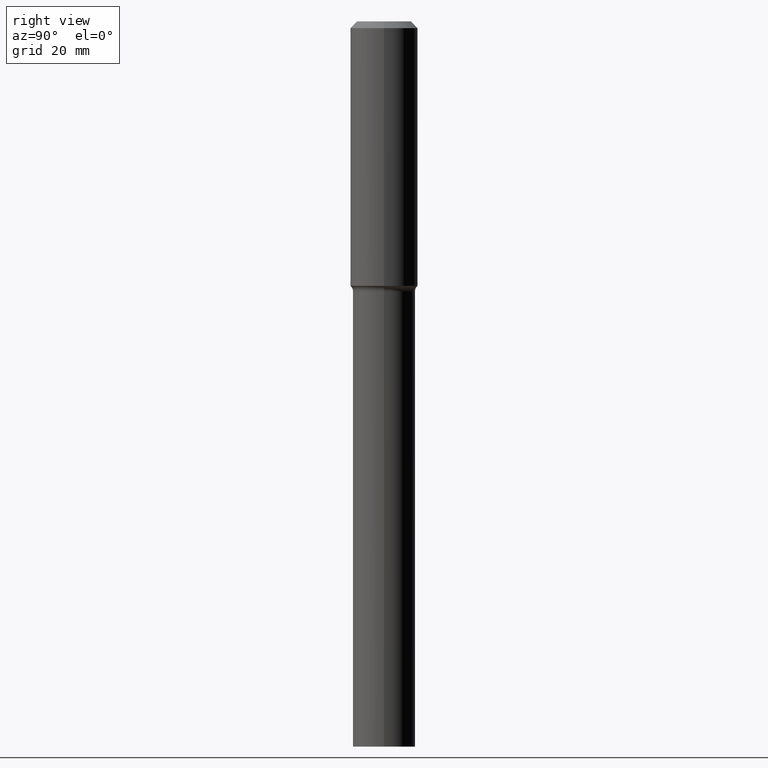
[diagram: clean part render]
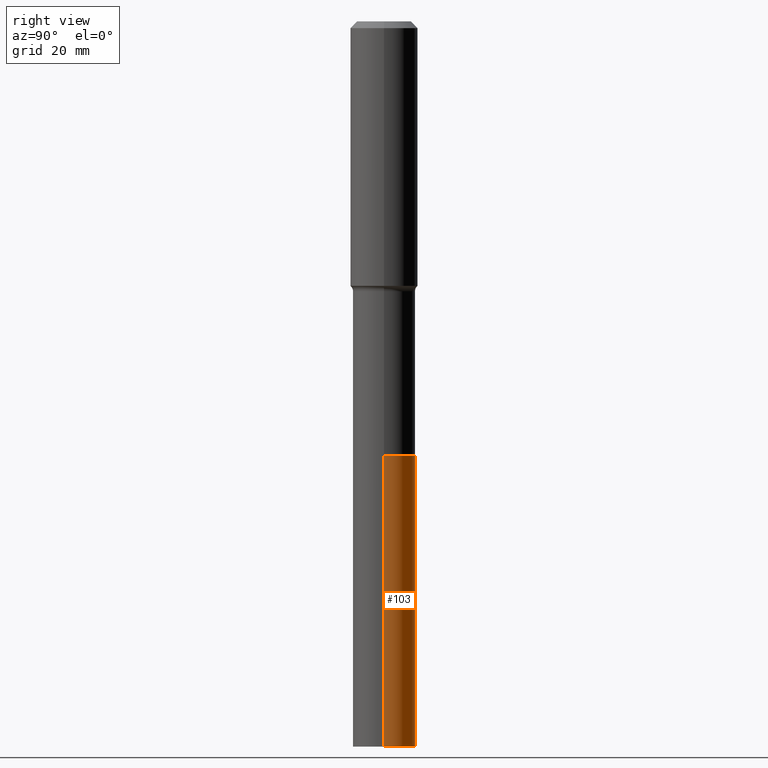
[diagram: same view with one face highlighted and labeled with its STEP entity id]
A machine part, right view. The second image highlights one B-rep face of the part: STEP entity #103.
In plain terms, the highlighted cylindrical surface (edge-blend (fillet) strip) has radius 9.2494 mm, axis along (-0, 0, 1).
Its self-contained STEP definition (entity closure, byte-faithful):
#5 = EDGE_CURVE ( 'NONE', #168, #232, #426, .T. ) ;
#27 = EDGE_LOOP ( 'NONE', ( #121, #134, #380, #378 ) ) ;
#49 = DIRECTION ( 'NONE',  ( -2.445468806185136877E-29, 3.491481338843145188E-15, 1.000000000000000000 ) ) ;
#85 = EDGE_CURVE ( 'NONE', #459, #210, #166, .T. ) ;
#103 = ADVANCED_FACE ( 'NONE', ( #271 ), #160, .T. ) ;
#110 = CARTESIAN_POINT ( 'NONE',  ( 0.3641499999999999737, -2.022929372912329659E-14, -5.065600000000001657 ) ) ;
#111 = VECTOR ( 'NONE', #277, 39.37007874015748143 ) ;
#121 = ORIENTED_EDGE ( 'NONE', *, *, #85, .T. ) ;
#134 = ORIENTED_EDGE ( 'NONE', *, *, #396, .T. ) ;
#153 = LINE ( 'NONE', #110, #111 ) ;
#160 = CYLINDRICAL_SURFACE ( 'NONE', #438, 0.3641499999999999737 ) ;
#166 = CIRCLE ( 'NONE', #464, 0.3641499999999999737 ) ;
#168 = VERTEX_POINT ( 'NONE', #356 ) ;
#191 = CARTESIAN_POINT ( 'NONE',  ( 2.069991525683471225E-28, -2.955399294077169677E-14, -8.464600000000000790 ) ) ;
#192 = DIRECTION ( 'NONE',  ( 1.000000000000000000, -6.982962677686263555E-15, 0.000000000000000000 ) ) ;
#210 = VERTEX_POINT ( 'NONE', #417 ) ;
#211 = AXIS2_PLACEMENT_3D ( 'NONE', #335, #428, #269 ) ;
#220 = VECTOR ( 'NONE', #49, 39.37007874015748143 ) ;
#232 = VERTEX_POINT ( 'NONE', #515 ) ;
#269 = DIRECTION ( 'NONE',  ( 1.000000000000000000, -6.982962677686263555E-15, 0.000000000000000000 ) ) ;
#271 = FACE_OUTER_BOUND ( 'NONE', #27, .T. ) ;
#277 = DIRECTION ( 'NONE',  ( -2.445468806185136877E-29, 3.491481338843145188E-15, 1.000000000000000000 ) ) ;
#308 = DIRECTION ( 'NONE',  ( -2.445468806185136597E-29, 3.491481338843145583E-15, 1.000000000000000000 ) ) ;
#309 = CARTESIAN_POINT ( 'NONE',  ( -0.3641499999999999737, -1.509900649777343914E-14, -5.065600000000001657 ) ) ;
#335 = CARTESIAN_POINT ( 'NONE',  ( 1.238776678461143074E-28, -1.768644787004384378E-14, -5.065600000000001657 ) ) ;
#354 = DIRECTION ( 'NONE',  ( 1.000000000000000000, -6.982962677686263555E-15, 0.000000000000000000 ) ) ;
#356 = CARTESIAN_POINT ( 'NONE',  ( 0.3641499999999999737, -2.022929372912329659E-14, -5.065600000000001657 ) ) ;
#378 = ORIENTED_EDGE ( 'NONE', *, *, #454, .F. ) ;
#380 = ORIENTED_EDGE ( 'NONE', *, *, #5, .F. ) ;
#396 = EDGE_CURVE ( 'NONE', #210, #232, #446, .T. ) ;
#417 = CARTESIAN_POINT ( 'NONE',  ( -0.3641499999999999737, -2.103277903313736248E-14, -8.464600000000000790 ) ) ;
#426 = CIRCLE ( 'NONE', #211, 0.3641499999999999737 ) ;
#428 = DIRECTION ( 'NONE',  ( -2.445468806185136597E-29, 3.491481338843145583E-15, 1.000000000000000000 ) ) ;
#430 = DIRECTION ( 'NONE',  ( -2.445468806185136597E-29, 3.491481338843145583E-15, 1.000000000000000000 ) ) ;
#433 = CARTESIAN_POINT ( 'NONE',  ( 0.3641499999999999737, -3.209683879985114959E-14, -8.464600000000000790 ) ) ;
#438 = AXIS2_PLACEMENT_3D ( 'NONE', #478, #430, #354 ) ;
#446 = LINE ( 'NONE', #309, #220 ) ;
#454 = EDGE_CURVE ( 'NONE', #459, #168, #153, .T. ) ;
#459 = VERTEX_POINT ( 'NONE', #433 ) ;
#464 = AXIS2_PLACEMENT_3D ( 'NONE', #191, #308, #192 ) ;
#478 = CARTESIAN_POINT ( 'NONE',  ( 1.238776678461143074E-28, -1.768644787004384378E-14, -5.065600000000001657 ) ) ;
#515 = CARTESIAN_POINT ( 'NONE',  ( -0.3641499999999999737, -2.103277903313736248E-14, -5.065600000000001657 ) ) ;